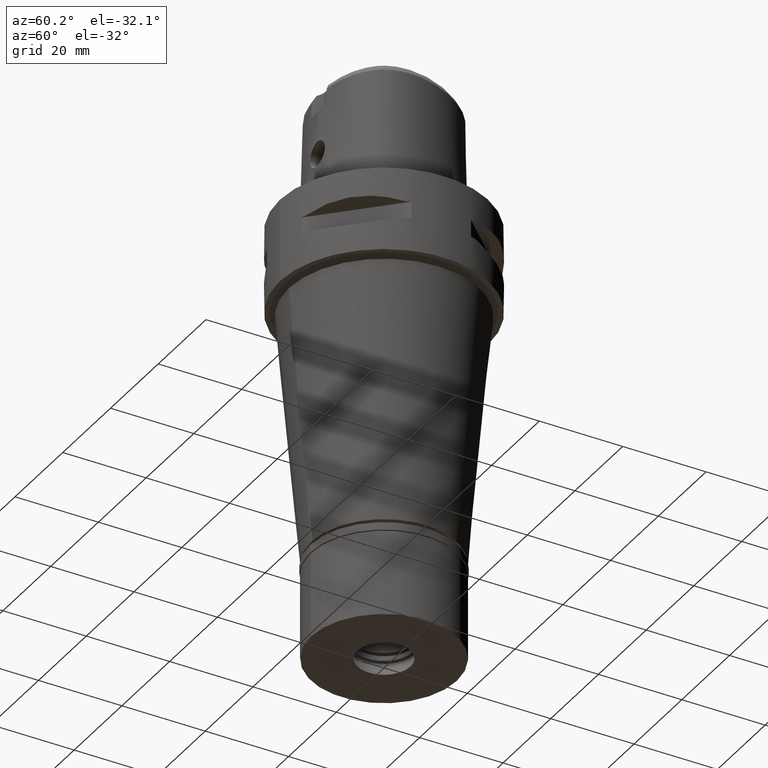
[diagram: clean part render]
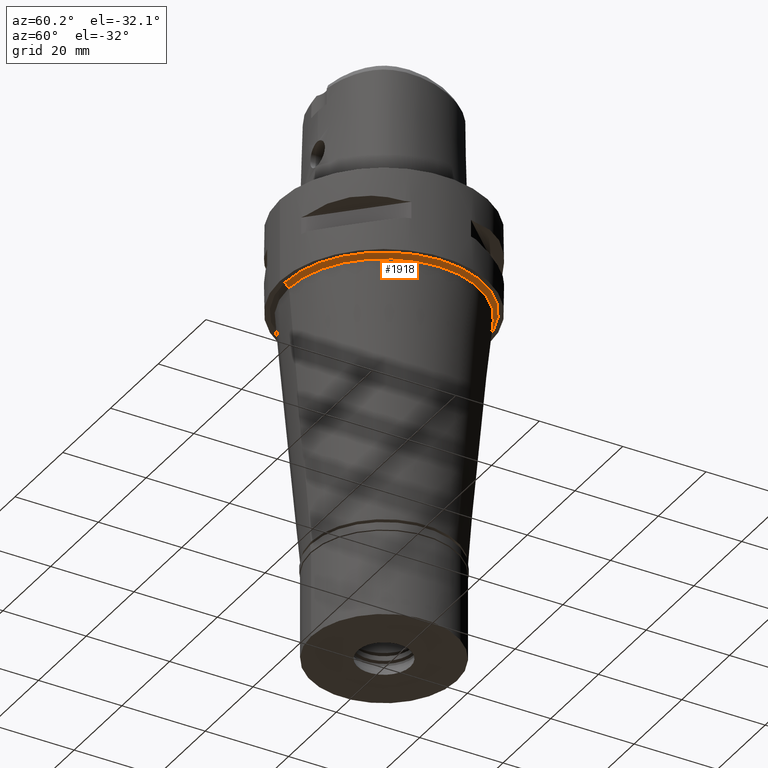
[diagram: same view with one face highlighted and labeled with its STEP entity id]
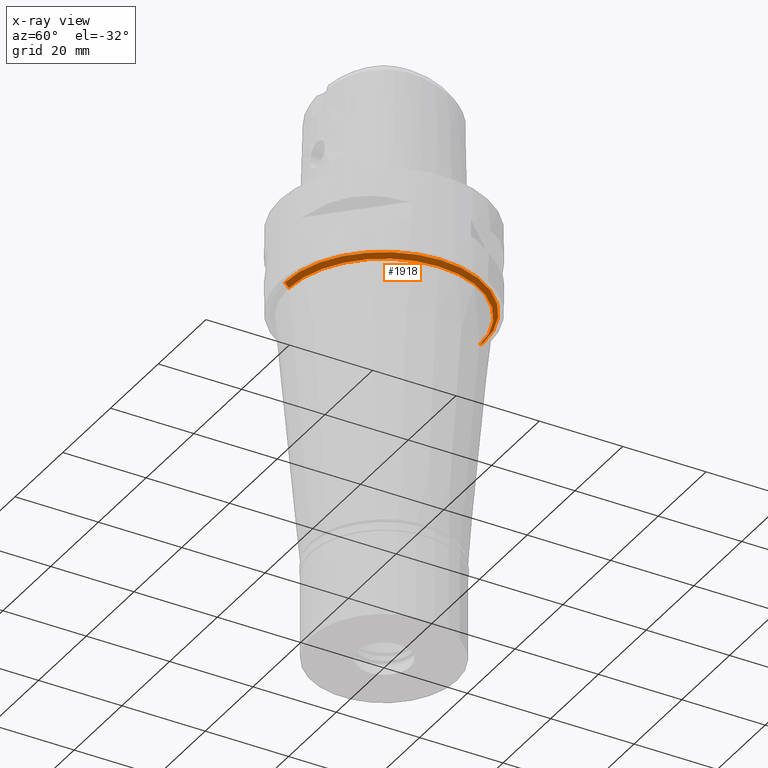
[diagram: x-ray of the same camera — body ghosted, the highlighted face saturated]
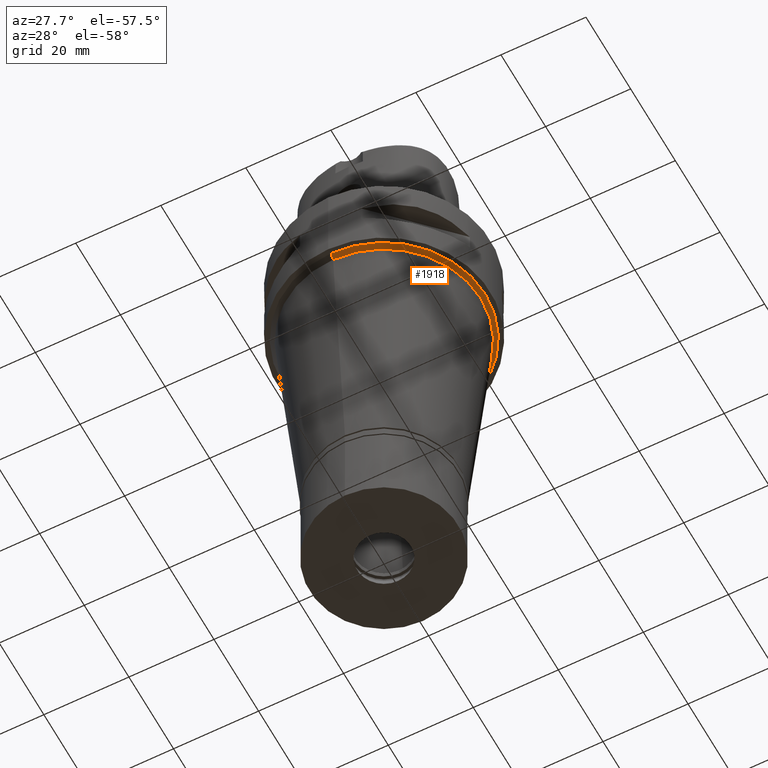
[diagram: same view with one face highlighted and labeled with its STEP entity id]
A machine part, auxiliary view. The second image highlights one B-rep face of the part: STEP entity #1918.
The next image is the same camera in x-ray: the body ghosted, the highlighted face saturated — about 1% of this face is hidden behind the body in this view.
A second angle (auxiliary view) of the same face is appended — the face is thin or edge-on in the first view.
In plain terms, the highlighted conical surface has half-angle 45 deg.
Its self-contained STEP definition (entity closure, byte-faithful):
#22 = DIRECTION ( 'NONE',  ( 0.0000000000000000000, 0.0000000000000000000, 1.000000000000000000 ) ) ;
#23 = VERTEX_POINT ( 'NONE', #4795 ) ;
#36 = ORIENTED_EDGE ( 'NONE', *, *, #1059, .T. ) ;
#42 = DIRECTION ( 'NONE',  ( 0.0000000000000000000, 1.000000000000000000, 0.0000000000000000000 ) ) ;
#325 = CARTESIAN_POINT ( 'NONE',  ( 0.0000000000000000000, -22.81056187601999952, -21.00000000000000000 ) ) ;
#426 = DIRECTION ( 'NONE',  ( 0.0000000000000000000, 0.0000000000000000000, 1.000000000000000000 ) ) ;
#533 = CARTESIAN_POINT ( 'NONE',  ( 0.0000000000000000000, 23.81056187601999952, -20.00000000000000000 ) ) ;
#800 = VECTOR ( 'NONE', #4377, 999.9999999999998863 ) ;
#816 = CARTESIAN_POINT ( 'NONE',  ( 0.0000000000000000000, 23.81056187601999952, -20.00000000000000000 ) ) ;
#1059 = EDGE_CURVE ( 'NONE', #1788, #3045, #3579, .T. ) ;
#1440 = CIRCLE ( 'NONE', #4877, 23.81056187601999952 ) ;
#1646 = ORIENTED_EDGE ( 'NONE', *, *, #2753, .F. ) ;
#1788 = VERTEX_POINT ( 'NONE', #325 ) ;
#1863 = LINE ( 'NONE', #3005, #4713 ) ;
#1918 = ADVANCED_FACE ( 'NONE', ( #4955 ), #4068, .T. ) ;
#2249 = EDGE_CURVE ( 'NONE', #4531, #23, #1440, .T. ) ;
#2365 = CARTESIAN_POINT ( 'NONE',  ( 0.0000000000000000000, 0.0000000000000000000, -20.50000000000000000 ) ) ;
#2386 = AXIS2_PLACEMENT_3D ( 'NONE', #2365, #426, #42 ) ;
#2753 = EDGE_CURVE ( 'NONE', #4531, #3045, #3947, .T. ) ;
#2853 = AXIS2_PLACEMENT_3D ( 'NONE', #4270, #22, #4218 ) ;
#2937 = DIRECTION ( 'NONE',  ( 0.0000000000000000000, 0.7071067811861980745, -0.7071067811868970709 ) ) ;
#3005 = CARTESIAN_POINT ( 'NONE',  ( 0.0000000000000000000, -23.81056187601999952, -20.00000000000000000 ) ) ;
#3045 = VERTEX_POINT ( 'NONE', #3612 ) ;
#3069 = DIRECTION ( 'NONE',  ( 0.0000000000000000000, 1.000000000000000000, 0.0000000000000000000 ) ) ;
#3107 = ORIENTED_EDGE ( 'NONE', *, *, #3311, .T. ) ;
#3311 = EDGE_CURVE ( 'NONE', #23, #1788, #1863, .T. ) ;
#3446 = CARTESIAN_POINT ( 'NONE',  ( 0.0000000000000000000, 0.0000000000000000000, -20.00000000000000000 ) ) ;
#3523 = DIRECTION ( 'NONE',  ( 0.0000000000000000000, 0.0000000000000000000, -1.000000000000000000 ) ) ;
#3579 = CIRCLE ( 'NONE', #2853, 22.81056187601999952 ) ;
#3580 = EDGE_LOOP ( 'NONE', ( #3762, #3107, #36, #1646 ) ) ;
#3612 = CARTESIAN_POINT ( 'NONE',  ( 0.0000000000000000000, 22.81056187601999952, -21.00000000000000000 ) ) ;
#3762 = ORIENTED_EDGE ( 'NONE', *, *, #2249, .T. ) ;
#3947 = LINE ( 'NONE', #533, #800 ) ;
#4068 = CONICAL_SURFACE ( 'NONE', #2386, 23.31056187601999952, 0.7853981633972997312 ) ;
#4218 = DIRECTION ( 'NONE',  ( 0.0000000000000000000, -1.000000000000000000, 0.0000000000000000000 ) ) ;
#4270 = CARTESIAN_POINT ( 'NONE',  ( 0.0000000000000000000, 0.0000000000000000000, -21.00000000000000000 ) ) ;
#4377 = DIRECTION ( 'NONE',  ( 0.0000000000000000000, -0.7071067811861980745, -0.7071067811868970709 ) ) ;
#4531 = VERTEX_POINT ( 'NONE', #816 ) ;
#4713 = VECTOR ( 'NONE', #2937, 999.9999999999998863 ) ;
#4795 = CARTESIAN_POINT ( 'NONE',  ( 0.0000000000000000000, -23.81056187601999952, -20.00000000000000000 ) ) ;
#4877 = AXIS2_PLACEMENT_3D ( 'NONE', #3446, #3523, #3069 ) ;
#4955 = FACE_OUTER_BOUND ( 'NONE', #3580, .T. ) ;